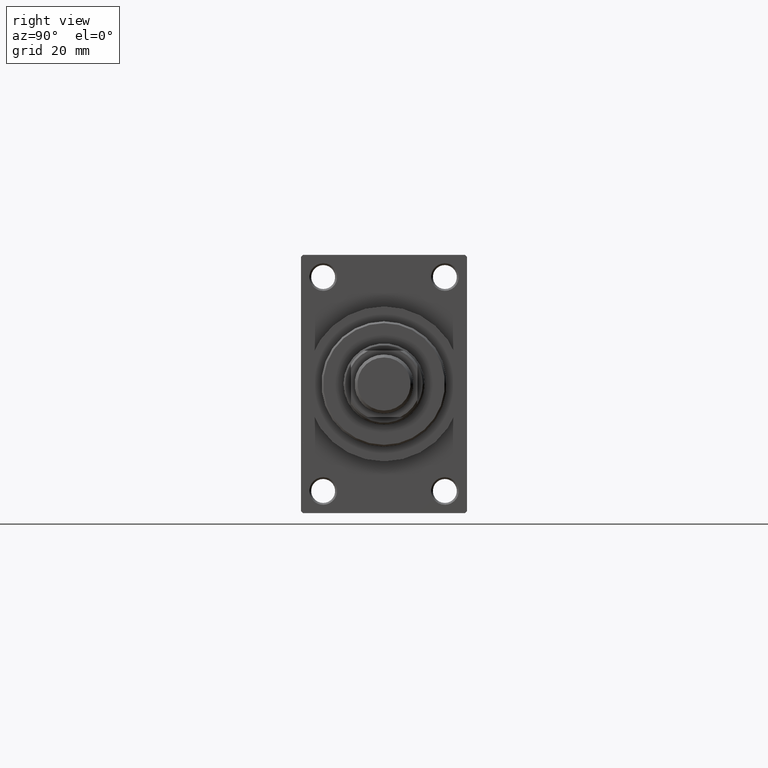
[diagram: clean part render]
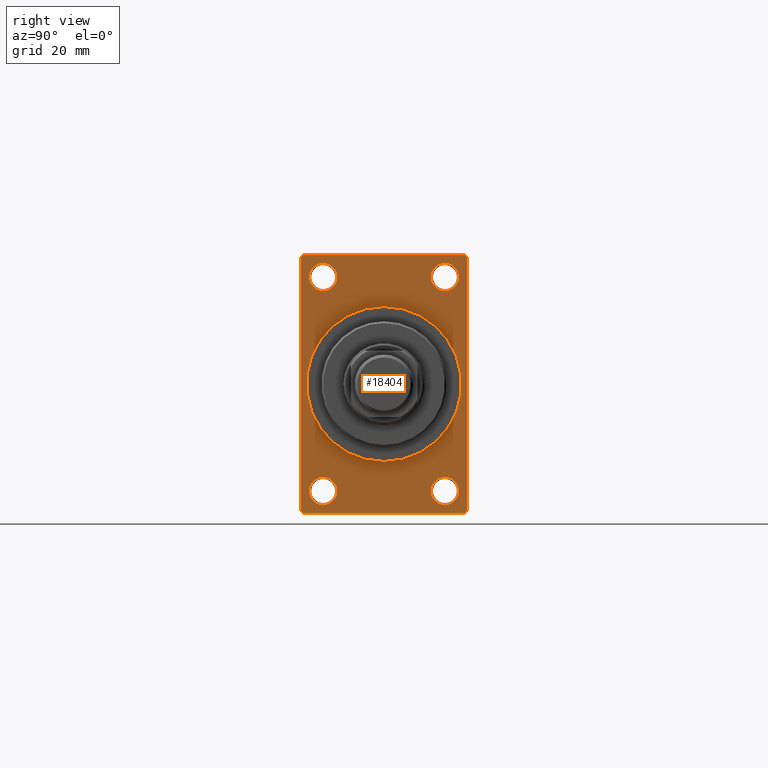
[diagram: same view with one face highlighted and labeled with its STEP entity id]
A machine part, right view. The second image highlights one B-rep face of the part: STEP entity #18404.
In plain terms, the highlighted planar face has unit normal (-1, 0, 0).
Its self-contained STEP definition (entity closure, byte-faithful):
#266 = EDGE_LOOP ( 'NONE', ( #25808, #33270 ) ) ;
#710 = LINE ( 'NONE', #14404, #25720 ) ;
#1126 = VERTEX_POINT ( 'NONE', #11582 ) ;
#1228 = DIRECTION ( 'NONE',  ( -1.000000000000000000, -0.000000000000000000, -0.000000000000000000 ) ) ;
#1253 = VERTEX_POINT ( 'NONE', #9141 ) ;
#2133 = ORIENTED_EDGE ( 'NONE', *, *, #10551, .F. ) ;
#2400 = DIRECTION ( 'NONE',  ( 0.000000000000000000, 0.000000000000000000, -1.000000000000000000 ) ) ;
#2465 = EDGE_CURVE ( 'NONE', #15668, #8817, #16217, .T. ) ;
#2581 = DIRECTION ( 'NONE',  ( -0.000000000000000000, 0.000000000000000000, 1.000000000000000000 ) ) ;
#3235 = VERTEX_POINT ( 'NONE', #19333 ) ;
#3471 = CARTESIAN_POINT ( 'NONE',  ( 113.0000000000000142, 16.50000000000000000, -25.24999999999992184 ) ) ;
#3549 = CARTESIAN_POINT ( 'NONE',  ( 113.0000000000000142, 16.50000000000000000, -28.99999999999999289 ) ) ;
#3765 = AXIS2_PLACEMENT_3D ( 'NONE', #11540, #22368, #11780 ) ;
#3801 = DIRECTION ( 'NONE',  ( 0.000000000000000000, -0.7071067811865474617, 0.7071067811865474617 ) ) ;
#4111 = CARTESIAN_POINT ( 'NONE',  ( 113.0000000000000142, -16.50000000000000000, 29.00000000000000711 ) ) ;
#5744 = CARTESIAN_POINT ( 'NONE',  ( 113.0000000000000142, -16.50000000000000000, -28.99999999999999289 ) ) ;
#5798 = EDGE_CURVE ( 'NONE', #44819, #46408, #18713, .T. ) ;
#6761 = VECTOR ( 'NONE', #37137, 1000.000000000000000 ) ;
#7193 = CARTESIAN_POINT ( 'NONE',  ( 113.0000000000000142, -22.50000000000000355, 34.50000000000000000 ) ) ;
#7247 = CARTESIAN_POINT ( 'NONE',  ( 113.0000000000000142, 22.49999999999999645, 35.00000000000000000 ) ) ;
#8817 = VERTEX_POINT ( 'NONE', #45562 ) ;
#9015 = VERTEX_POINT ( 'NONE', #41366 ) ;
#9054 = FACE_BOUND ( 'NONE', #10499, .T. ) ;
#9141 = CARTESIAN_POINT ( 'NONE',  ( 113.0000000000000142, -21.99999999999998934, 35.00000000000000000 ) ) ;
#9289 = AXIS2_PLACEMENT_3D ( 'NONE', #44973, #30752, #27603 ) ;
#9551 = DIRECTION ( 'NONE',  ( 0.000000000000000000, 0.000000000000000000, 1.000000000000000000 ) ) ;
#9647 = EDGE_CURVE ( 'NONE', #32852, #43749, #18062, .T. ) ;
#9787 = DIRECTION ( 'NONE',  ( -1.000000000000000000, -0.000000000000000000, -0.000000000000000000 ) ) ;
#9827 = EDGE_CURVE ( 'NONE', #32852, #33205, #710, .T. ) ;
#10162 = DIRECTION ( 'NONE',  ( 0.000000000000000000, 0.7071067811865376918, -0.7071067811865574537 ) ) ;
#10499 = EDGE_LOOP ( 'NONE', ( #32920, #34192 ) ) ;
#10549 = CARTESIAN_POINT ( 'NONE',  ( 113.0000000000000142, 16.50000000000000000, 32.75000000000007816 ) ) ;
#10551 = EDGE_CURVE ( 'NONE', #9015, #18155, #47291, .T. ) ;
#10905 = EDGE_CURVE ( 'NONE', #40134, #1126, #32703, .T. ) ;
#11061 = VERTEX_POINT ( 'NONE', #30495 ) ;
#11407 = VECTOR ( 'NONE', #10162, 999.9999999999998863 ) ;
#11540 = CARTESIAN_POINT ( 'NONE',  ( 113.0000000000000142, 16.50000000000000000, 29.00000000000000355 ) ) ;
#11582 = CARTESIAN_POINT ( 'NONE',  ( 113.0000000000000142, 16.50000000000000000, -32.75000000000007105 ) ) ;
#11780 = DIRECTION ( 'NONE',  ( 0.000000000000000000, 0.000000000000000000, 1.000000000000000000 ) ) ;
#12168 = EDGE_CURVE ( 'NONE', #22267, #1253, #36230, .T. ) ;
#12259 = DIRECTION ( 'NONE',  ( 0.000000000000000000, 0.000000000000000000, 1.000000000000000000 ) ) ;
#12304 = CARTESIAN_POINT ( 'NONE',  ( 113.0000000000000142, -22.50000000000000355, 34.50000000000000000 ) ) ;
#12582 = VERTEX_POINT ( 'NONE', #12304 ) ;
#13668 = EDGE_CURVE ( 'NONE', #29228, #33205, #28940, .T. ) ;
#13913 = EDGE_CURVE ( 'NONE', #1253, #12582, #14906, .T. ) ;
#14118 = CARTESIAN_POINT ( 'NONE',  ( 113.0000000000000142, 16.50000000000000000, -28.99999999999999289 ) ) ;
#14302 = CARTESIAN_POINT ( 'NONE',  ( 113.0000000000000142, 22.49999999999999645, 35.00000000000000000 ) ) ;
#14404 = CARTESIAN_POINT ( 'NONE',  ( 113.0000000000000142, 22.49999999999999645, -34.50000000000000000 ) ) ;
#14482 = LINE ( 'NONE', #44122, #6761 ) ;
#14530 = AXIS2_PLACEMENT_3D ( 'NONE', #24473, #35085, #2581 ) ;
#14611 = LINE ( 'NONE', #29312, #35852 ) ;
#14906 = LINE ( 'NONE', #7193, #22854 ) ;
#15162 = DIRECTION ( 'NONE',  ( -1.000000000000000000, -0.000000000000000000, -0.000000000000000000 ) ) ;
#15668 = VERTEX_POINT ( 'NONE', #16208 ) ;
#15840 = EDGE_CURVE ( 'NONE', #12582, #3235, #14482, .T. ) ;
#15917 = ORIENTED_EDGE ( 'NONE', *, *, #13668, .F. ) ;
#16208 = CARTESIAN_POINT ( 'NONE',  ( 113.0000000000000142, -16.50000000000000000, -32.75000000000007105 ) ) ;
#16217 = CIRCLE ( 'NONE', #9289, 3.750000000000076383 ) ;
#16608 = DIRECTION ( 'NONE',  ( 1.000000000000000000, 0.000000000000000000, 0.000000000000000000 ) ) ;
#16722 = EDGE_CURVE ( 'NONE', #3235, #43749, #28007, .T. ) ;
#16836 = CIRCLE ( 'NONE', #37629, 21.00000000000000000 ) ;
#17015 = EDGE_CURVE ( 'NONE', #46408, #44819, #19135, .T. ) ;
#17595 = ORIENTED_EDGE ( 'NONE', *, *, #9827, .T. ) ;
#17975 = EDGE_CURVE ( 'NONE', #8817, #15668, #22997, .T. ) ;
#18062 = LINE ( 'NONE', #36109, #24149 ) ;
#18127 = EDGE_CURVE ( 'NONE', #18155, #9015, #16836, .T. ) ;
#18155 = VERTEX_POINT ( 'NONE', #33432 ) ;
#18404 = ADVANCED_FACE ( 'NONE', ( #9054, #38463, #34843, #46154, #35788, #39660 ), #24225, .F. ) ;
#18713 = CIRCLE ( 'NONE', #34075, 3.750000000000072831 ) ;
#19022 = EDGE_LOOP ( 'NONE', ( #32101, #25249 ) ) ;
#19135 = CIRCLE ( 'NONE', #3765, 3.750000000000072831 ) ;
#19333 = CARTESIAN_POINT ( 'NONE',  ( 113.0000000000000142, -22.50000000000000355, -34.49999999999997158 ) ) ;
#19810 = EDGE_CURVE ( 'NONE', #42319, #11061, #38412, .T. ) ;
#20226 = CARTESIAN_POINT ( 'NONE',  ( 113.0000000000000142, 0.000000000000000000, 0.000000000000000000 ) ) ;
#20672 = CARTESIAN_POINT ( 'NONE',  ( 113.0000000000000142, 0.000000000000000000, 0.000000000000000000 ) ) ;
#21434 = AXIS2_PLACEMENT_3D ( 'NONE', #5744, #1228, #12259 ) ;
#22116 = DIRECTION ( 'NONE',  ( -0.000000000000000000, -0.7071067811865474617, -0.7071067811865474617 ) ) ;
#22267 = VERTEX_POINT ( 'NONE', #43851 ) ;
#22368 = DIRECTION ( 'NONE',  ( -1.000000000000000000, -0.000000000000000000, -0.000000000000000000 ) ) ;
#22854 = VECTOR ( 'NONE', #22116, 1000.000000000000114 ) ;
#22997 = CIRCLE ( 'NONE', #21434, 3.750000000000076383 ) ;
#24139 = CARTESIAN_POINT ( 'NONE',  ( 113.0000000000000142, 16.50000000000000000, 25.24999999999993250 ) ) ;
#24149 = VECTOR ( 'NONE', #47193, 1000.000000000000000 ) ;
#24225 = PLANE ( 'NONE',  #14530 ) ;
#24473 = CARTESIAN_POINT ( 'NONE',  ( 113.0000000000000142, 0.000000000000000000, 0.000000000000000000 ) ) ;
#25249 = ORIENTED_EDGE ( 'NONE', *, *, #17975, .T. ) ;
#25720 = VECTOR ( 'NONE', #28866, 1000.000000000000114 ) ;
#25808 = ORIENTED_EDGE ( 'NONE', *, *, #44336, .T. ) ;
#26593 = EDGE_LOOP ( 'NONE', ( #40310, #40196 ) ) ;
#27603 = DIRECTION ( 'NONE',  ( 0.000000000000000000, 0.000000000000000000, 1.000000000000000000 ) ) ;
#28007 = LINE ( 'NONE', #47489, #11407 ) ;
#28866 = DIRECTION ( 'NONE',  ( -0.000000000000000000, 0.7071067811865474617, 0.7071067811865474617 ) ) ;
#28940 = LINE ( 'NONE', #7247, #28981 ) ;
#28981 = VECTOR ( 'NONE', #40516, 1000.000000000000000 ) ;
#29228 = VERTEX_POINT ( 'NONE', #32479 ) ;
#29312 = CARTESIAN_POINT ( 'NONE',  ( 113.0000000000000142, 21.99999999999999645, 35.00000000000000000 ) ) ;
#29622 = DIRECTION ( 'NONE',  ( 0.000000000000000000, 0.000000000000000000, 1.000000000000000000 ) ) ;
#29774 = EDGE_LOOP ( 'NONE', ( #33210, #47240, #38472, #17595, #15917, #34169, #31250, #34469 ) ) ;
#30495 = CARTESIAN_POINT ( 'NONE',  ( 113.0000000000000142, -16.50000000000000000, 32.75000000000007816 ) ) ;
#30733 = DIRECTION ( 'NONE',  ( -1.000000000000000000, -0.000000000000000000, -0.000000000000000000 ) ) ;
#30752 = DIRECTION ( 'NONE',  ( -1.000000000000000000, -0.000000000000000000, -0.000000000000000000 ) ) ;
#31143 = AXIS2_PLACEMENT_3D ( 'NONE', #20226, #16608, #42377 ) ;
#31250 = ORIENTED_EDGE ( 'NONE', *, *, #12168, .T. ) ;
#32101 = ORIENTED_EDGE ( 'NONE', *, *, #2465, .T. ) ;
#32479 = CARTESIAN_POINT ( 'NONE',  ( 113.0000000000000142, 22.49999999999999645, 34.50000000000000000 ) ) ;
#32666 = AXIS2_PLACEMENT_3D ( 'NONE', #14118, #9787, #9551 ) ;
#32703 = CIRCLE ( 'NONE', #32666, 3.750000000000076383 ) ;
#32707 = DIRECTION ( 'NONE',  ( 0.000000000000000000, 0.000000000000000000, 1.000000000000000000 ) ) ;
#32852 = VERTEX_POINT ( 'NONE', #45608 ) ;
#32920 = ORIENTED_EDGE ( 'NONE', *, *, #19810, .T. ) ;
#33170 = DIRECTION ( 'NONE',  ( 0.000000000000000000, 0.000000000000000000, 1.000000000000000000 ) ) ;
#33205 = VERTEX_POINT ( 'NONE', #45556 ) ;
#33210 = ORIENTED_EDGE ( 'NONE', *, *, #15840, .T. ) ;
#33270 = ORIENTED_EDGE ( 'NONE', *, *, #10905, .T. ) ;
#33432 = CARTESIAN_POINT ( 'NONE',  ( 113.0000000000000142, 2.571758278209441661E-15, -21.00000000000000000 ) ) ;
#33529 = CIRCLE ( 'NONE', #38218, 3.750000000000069278 ) ;
#34075 = AXIS2_PLACEMENT_3D ( 'NONE', #34351, #30733, #45420 ) ;
#34100 = EDGE_LOOP ( 'NONE', ( #2133, #43863 ) ) ;
#34169 = ORIENTED_EDGE ( 'NONE', *, *, #45252, .T. ) ;
#34192 = ORIENTED_EDGE ( 'NONE', *, *, #45211, .T. ) ;
#34329 = VECTOR ( 'NONE', #37199, 1000.000000000000000 ) ;
#34351 = CARTESIAN_POINT ( 'NONE',  ( 113.0000000000000142, 16.50000000000000000, 29.00000000000000355 ) ) ;
#34469 = ORIENTED_EDGE ( 'NONE', *, *, #13913, .T. ) ;
#34843 = FACE_BOUND ( 'NONE', #266, .T. ) ;
#35085 = DIRECTION ( 'NONE',  ( -1.000000000000000000, 0.000000000000000000, -0.000000000000000000 ) ) ;
#35368 = DIRECTION ( 'NONE',  ( 1.000000000000000000, 0.000000000000000000, 0.000000000000000000 ) ) ;
#35788 = FACE_BOUND ( 'NONE', #34100, .T. ) ;
#35852 = VECTOR ( 'NONE', #3801, 1000.000000000000114 ) ;
#36109 = CARTESIAN_POINT ( 'NONE',  ( 113.0000000000000142, 22.49999999999999645, -35.00000000000000000 ) ) ;
#36230 = LINE ( 'NONE', #14302, #34329 ) ;
#37137 = DIRECTION ( 'NONE',  ( 0.000000000000000000, 0.000000000000000000, -1.000000000000000000 ) ) ;
#37199 = DIRECTION ( 'NONE',  ( 0.000000000000000000, -1.000000000000000000, 0.000000000000000000 ) ) ;
#37385 = CIRCLE ( 'NONE', #42778, 3.750000000000076383 ) ;
#37629 = AXIS2_PLACEMENT_3D ( 'NONE', #20672, #35368, #2400 ) ;
#38218 = AXIS2_PLACEMENT_3D ( 'NONE', #44008, #47149, #32707 ) ;
#38412 = CIRCLE ( 'NONE', #39203, 3.750000000000069278 ) ;
#38463 = FACE_BOUND ( 'NONE', #19022, .T. ) ;
#38472 = ORIENTED_EDGE ( 'NONE', *, *, #9647, .F. ) ;
#39203 = AXIS2_PLACEMENT_3D ( 'NONE', #4111, #15162, #29622 ) ;
#39660 = FACE_OUTER_BOUND ( 'NONE', #29774, .T. ) ;
#40134 = VERTEX_POINT ( 'NONE', #3471 ) ;
#40196 = ORIENTED_EDGE ( 'NONE', *, *, #17015, .T. ) ;
#40310 = ORIENTED_EDGE ( 'NONE', *, *, #5798, .T. ) ;
#40386 = CARTESIAN_POINT ( 'NONE',  ( 113.0000000000000142, -16.50000000000000000, 25.24999999999993960 ) ) ;
#40516 = DIRECTION ( 'NONE',  ( 0.000000000000000000, 0.000000000000000000, -1.000000000000000000 ) ) ;
#40637 = DIRECTION ( 'NONE',  ( -1.000000000000000000, -0.000000000000000000, -0.000000000000000000 ) ) ;
#41366 = CARTESIAN_POINT ( 'NONE',  ( 113.0000000000000142, 0.000000000000000000, 21.00000000000000000 ) ) ;
#42319 = VERTEX_POINT ( 'NONE', #40386 ) ;
#42377 = DIRECTION ( 'NONE',  ( 0.000000000000000000, 0.000000000000000000, -1.000000000000000000 ) ) ;
#42778 = AXIS2_PLACEMENT_3D ( 'NONE', #3549, #40637, #33170 ) ;
#43749 = VERTEX_POINT ( 'NONE', #44587 ) ;
#43851 = CARTESIAN_POINT ( 'NONE',  ( 113.0000000000000142, 21.99999999999999645, 35.00000000000000000 ) ) ;
#43863 = ORIENTED_EDGE ( 'NONE', *, *, #18127, .F. ) ;
#44008 = CARTESIAN_POINT ( 'NONE',  ( 113.0000000000000142, -16.50000000000000000, 29.00000000000000711 ) ) ;
#44122 = CARTESIAN_POINT ( 'NONE',  ( 113.0000000000000142, -22.50000000000000355, 35.00000000000000000 ) ) ;
#44336 = EDGE_CURVE ( 'NONE', #1126, #40134, #37385, .T. ) ;
#44587 = CARTESIAN_POINT ( 'NONE',  ( 113.0000000000000142, -21.99999999999997513, -35.00000000000000000 ) ) ;
#44819 = VERTEX_POINT ( 'NONE', #24139 ) ;
#44973 = CARTESIAN_POINT ( 'NONE',  ( 113.0000000000000142, -16.50000000000000000, -28.99999999999999289 ) ) ;
#45211 = EDGE_CURVE ( 'NONE', #11061, #42319, #33529, .T. ) ;
#45252 = EDGE_CURVE ( 'NONE', #29228, #22267, #14611, .T. ) ;
#45420 = DIRECTION ( 'NONE',  ( 0.000000000000000000, 0.000000000000000000, 1.000000000000000000 ) ) ;
#45556 = CARTESIAN_POINT ( 'NONE',  ( 113.0000000000000142, 22.49999999999999645, -34.50000000000000000 ) ) ;
#45562 = CARTESIAN_POINT ( 'NONE',  ( 113.0000000000000142, -16.50000000000000000, -25.24999999999992184 ) ) ;
#45608 = CARTESIAN_POINT ( 'NONE',  ( 113.0000000000000142, 21.99999999999999645, -35.00000000000000000 ) ) ;
#46154 = FACE_BOUND ( 'NONE', #26593, .T. ) ;
#46408 = VERTEX_POINT ( 'NONE', #10549 ) ;
#47149 = DIRECTION ( 'NONE',  ( -1.000000000000000000, -0.000000000000000000, -0.000000000000000000 ) ) ;
#47193 = DIRECTION ( 'NONE',  ( 0.000000000000000000, -1.000000000000000000, 0.000000000000000000 ) ) ;
#47240 = ORIENTED_EDGE ( 'NONE', *, *, #16722, .T. ) ;
#47291 = CIRCLE ( 'NONE', #31143, 21.00000000000000000 ) ;
#47489 = CARTESIAN_POINT ( 'NONE',  ( 113.0000000000000142, -21.99999999999998934, -35.00000000000000000 ) ) ;